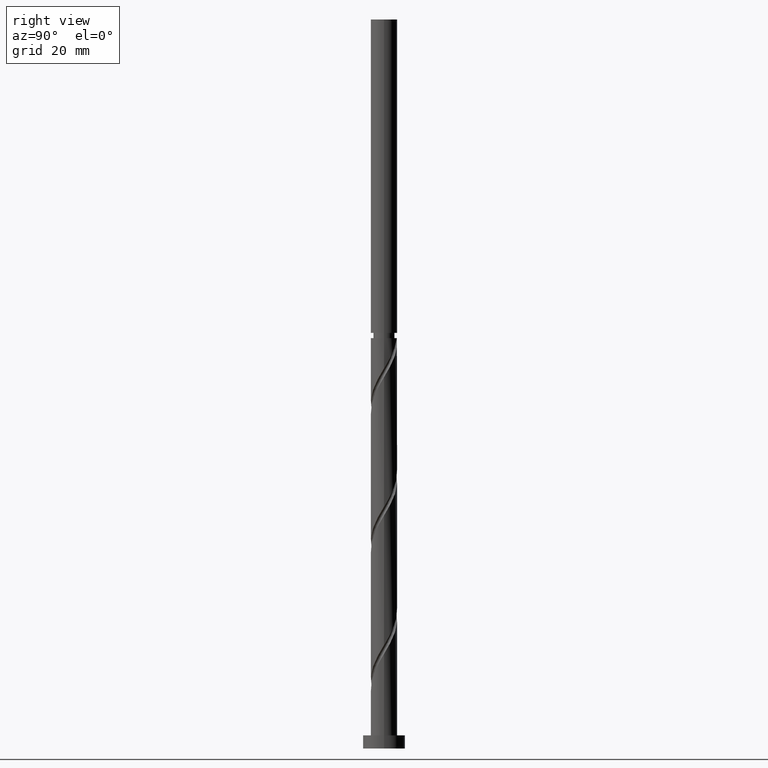
[diagram: clean part render]
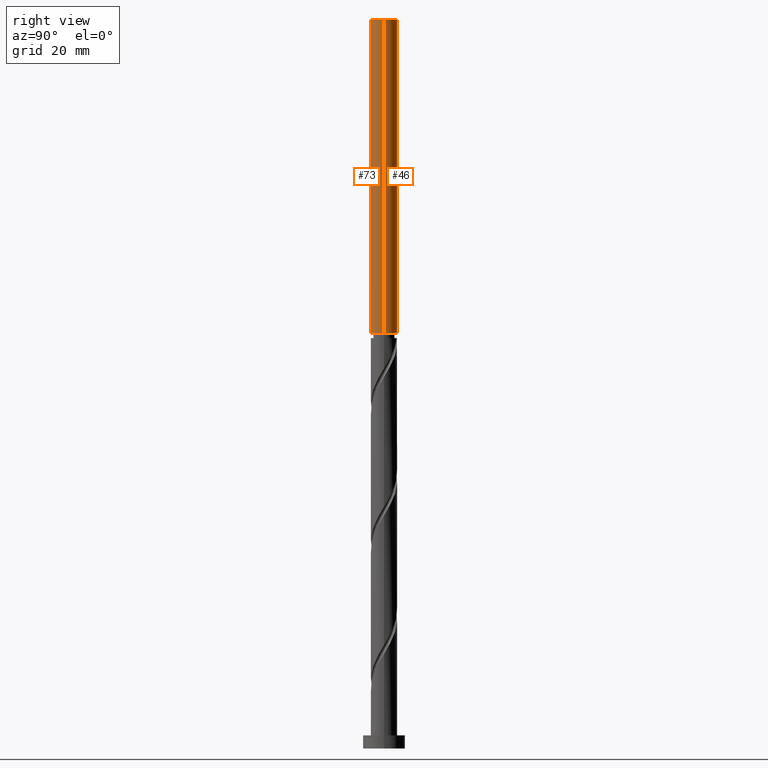
[diagram: same view with one multi-face feature highlighted, each face labeled with its STEP entity id]
A machine part, right view. The highlighted faces form ONE feature: a constant-radius fillet chain: 2 tangent blend faces with common blend radius 5 mm. The faces share edges in the B-rep.
Their STEP definitions:
[1] entity #73 (Cylinder):
#73 = ADVANCED_FACE ( 'NONE', ( #945 ), #587, .T. ) ;
#108 = CARTESIAN_POINT ( 'NONE',  ( 5.000000000000000000, 6.123233995736766282E-16, 276.6500000000000341 ) ) ;
#174 = CARTESIAN_POINT ( 'NONE',  ( 5.000000000000000000, 6.123233995736766282E-16, 276.6500000000000341 ) ) ;
#195 = EDGE_LOOP ( 'NONE', ( #1554, #1012, #898, #546 ) ) ;
#216 = LINE ( 'NONE', #424, #1066 ) ;
#298 = EDGE_CURVE ( 'NONE', #2371, #1163, #1651, .T. ) ;
#342 = LINE ( 'NONE', #174, #961 ) ;
#424 = CARTESIAN_POINT ( 'NONE',  ( -5.000000000000000000, 0.000000000000000000, 276.6500000000000341 ) ) ;
#464 = CARTESIAN_POINT ( 'NONE',  ( -4.999999999999993783, 0.000000000000000000, 157.7145295302219097 ) ) ;
#546 = ORIENTED_EDGE ( 'NONE', *, *, #298, .F. ) ;
#587 = CYLINDRICAL_SURFACE ( 'NONE', #1459, 5.000000000000000000 ) ;
#898 = ORIENTED_EDGE ( 'NONE', *, *, #2221, .T. ) ;
#930 = VERTEX_POINT ( 'NONE', #108 ) ;
#944 = EDGE_CURVE ( 'NONE', #930, #2371, #342, .T. ) ;
#945 = FACE_OUTER_BOUND ( 'NONE', #195, .T. ) ;
#960 = DIRECTION ( 'NONE',  ( -1.000000000000000000, 0.000000000000000000, 0.000000000000000000 ) ) ;
#961 = VECTOR ( 'NONE', #1295, 1000.000000000000000 ) ;
#965 = EDGE_CURVE ( 'NONE', #1805, #930, #1006, .T. ) ;
#1006 = CIRCLE ( 'NONE', #1864, 5.000000000000000000 ) ;
#1012 = ORIENTED_EDGE ( 'NONE', *, *, #965, .F. ) ;
#1058 = DIRECTION ( 'NONE',  ( 0.000000000000000000, 0.000000000000000000, 1.000000000000000000 ) ) ;
#1066 = VECTOR ( 'NONE', #1875, 1000.000000000000000 ) ;
#1163 = VERTEX_POINT ( 'NONE', #464 ) ;
#1210 = CARTESIAN_POINT ( 'NONE',  ( -5.000000000000000000, 0.000000000000000000, 276.6500000000000341 ) ) ;
#1230 = AXIS2_PLACEMENT_3D ( 'NONE', #1374, #1912, #1544 ) ;
#1244 = CARTESIAN_POINT ( 'NONE',  ( 0.000000000000000000, 0.000000000000000000, 276.6500000000000341 ) ) ;
#1295 = DIRECTION ( 'NONE',  ( -0.000000000000000000, -0.000000000000000000, -1.000000000000000000 ) ) ;
#1374 = CARTESIAN_POINT ( 'NONE',  ( 0.000000000000000000, 0.000000000000000000, 157.7145295302219097 ) ) ;
#1459 = AXIS2_PLACEMENT_3D ( 'NONE', #2028, #2407, #960 ) ;
#1544 = DIRECTION ( 'NONE',  ( -1.000000000000000000, 0.000000000000000000, 0.000000000000000000 ) ) ;
#1550 = CARTESIAN_POINT ( 'NONE',  ( 4.999999999999993783, 6.123233995736762338E-16, 157.7145295302219097 ) ) ;
#1554 = ORIENTED_EDGE ( 'NONE', *, *, #944, .F. ) ;
#1651 = CIRCLE ( 'NONE', #1230, 4.999999999999993783 ) ;
#1782 = DIRECTION ( 'NONE',  ( 1.000000000000000000, 0.000000000000000000, 0.000000000000000000 ) ) ;
#1805 = VERTEX_POINT ( 'NONE', #1210 ) ;
#1864 = AXIS2_PLACEMENT_3D ( 'NONE', #1244, #1058, #1782 ) ;
#1875 = DIRECTION ( 'NONE',  ( -0.000000000000000000, -0.000000000000000000, -1.000000000000000000 ) ) ;
#1912 = DIRECTION ( 'NONE',  ( -0.000000000000000000, -0.000000000000000000, -1.000000000000000000 ) ) ;
#2028 = CARTESIAN_POINT ( 'NONE',  ( 0.000000000000000000, 0.000000000000000000, 276.6500000000000341 ) ) ;
#2221 = EDGE_CURVE ( 'NONE', #1805, #1163, #216, .T. ) ;
#2371 = VERTEX_POINT ( 'NONE', #1550 ) ;
#2407 = DIRECTION ( 'NONE',  ( -0.000000000000000000, -0.000000000000000000, -1.000000000000000000 ) ) ;
[2] entity #46 (Cylinder):
#46 = ADVANCED_FACE ( 'NONE', ( #2422 ), #933, .T. ) ;
#108 = CARTESIAN_POINT ( 'NONE',  ( 5.000000000000000000, 6.123233995736766282E-16, 276.6500000000000341 ) ) ;
#155 = AXIS2_PLACEMENT_3D ( 'NONE', #1677, #1690, #2428 ) ;
#174 = CARTESIAN_POINT ( 'NONE',  ( 5.000000000000000000, 6.123233995736766282E-16, 276.6500000000000341 ) ) ;
#216 = LINE ( 'NONE', #424, #1066 ) ;
#342 = LINE ( 'NONE', #174, #961 ) ;
#424 = CARTESIAN_POINT ( 'NONE',  ( -5.000000000000000000, 0.000000000000000000, 276.6500000000000341 ) ) ;
#464 = CARTESIAN_POINT ( 'NONE',  ( -4.999999999999993783, 0.000000000000000000, 157.7145295302219097 ) ) ;
#528 = DIRECTION ( 'NONE',  ( 0.000000000000000000, 0.000000000000000000, 1.000000000000000000 ) ) ;
#588 = AXIS2_PLACEMENT_3D ( 'NONE', #2205, #528, #2387 ) ;
#742 = AXIS2_PLACEMENT_3D ( 'NONE', #1657, #1319, #2273 ) ;
#789 = CIRCLE ( 'NONE', #588, 5.000000000000000000 ) ;
#930 = VERTEX_POINT ( 'NONE', #108 ) ;
#933 = CYLINDRICAL_SURFACE ( 'NONE', #742, 5.000000000000000000 ) ;
#944 = EDGE_CURVE ( 'NONE', #930, #2371, #342, .T. ) ;
#961 = VECTOR ( 'NONE', #1295, 1000.000000000000000 ) ;
#986 = ORIENTED_EDGE ( 'NONE', *, *, #1608, .F. ) ;
#1066 = VECTOR ( 'NONE', #1875, 1000.000000000000000 ) ;
#1163 = VERTEX_POINT ( 'NONE', #464 ) ;
#1178 = ORIENTED_EDGE ( 'NONE', *, *, #944, .T. ) ;
#1210 = CARTESIAN_POINT ( 'NONE',  ( -5.000000000000000000, 0.000000000000000000, 276.6500000000000341 ) ) ;
#1295 = DIRECTION ( 'NONE',  ( -0.000000000000000000, -0.000000000000000000, -1.000000000000000000 ) ) ;
#1319 = DIRECTION ( 'NONE',  ( -0.000000000000000000, -0.000000000000000000, -1.000000000000000000 ) ) ;
#1449 = ORIENTED_EDGE ( 'NONE', *, *, #2221, .F. ) ;
#1460 = EDGE_CURVE ( 'NONE', #930, #1805, #789, .T. ) ;
#1550 = CARTESIAN_POINT ( 'NONE',  ( 4.999999999999993783, 6.123233995736762338E-16, 157.7145295302219097 ) ) ;
#1608 = EDGE_CURVE ( 'NONE', #1163, #2371, #2359, .T. ) ;
#1657 = CARTESIAN_POINT ( 'NONE',  ( 0.000000000000000000, 0.000000000000000000, 276.6500000000000341 ) ) ;
#1677 = CARTESIAN_POINT ( 'NONE',  ( 0.000000000000000000, 0.000000000000000000, 157.7145295302219097 ) ) ;
#1690 = DIRECTION ( 'NONE',  ( -0.000000000000000000, -0.000000000000000000, -1.000000000000000000 ) ) ;
#1805 = VERTEX_POINT ( 'NONE', #1210 ) ;
#1875 = DIRECTION ( 'NONE',  ( -0.000000000000000000, -0.000000000000000000, -1.000000000000000000 ) ) ;
#2023 = EDGE_LOOP ( 'NONE', ( #2404, #1178, #986, #1449 ) ) ;
#2205 = CARTESIAN_POINT ( 'NONE',  ( 0.000000000000000000, 0.000000000000000000, 276.6500000000000341 ) ) ;
#2221 = EDGE_CURVE ( 'NONE', #1805, #1163, #216, .T. ) ;
#2273 = DIRECTION ( 'NONE',  ( -1.000000000000000000, 0.000000000000000000, 0.000000000000000000 ) ) ;
#2359 = CIRCLE ( 'NONE', #155, 4.999999999999993783 ) ;
#2371 = VERTEX_POINT ( 'NONE', #1550 ) ;
#2387 = DIRECTION ( 'NONE',  ( 1.000000000000000000, 0.000000000000000000, 0.000000000000000000 ) ) ;
#2404 = ORIENTED_EDGE ( 'NONE', *, *, #1460, .F. ) ;
#2422 = FACE_OUTER_BOUND ( 'NONE', #2023, .T. ) ;
#2428 = DIRECTION ( 'NONE',  ( -1.000000000000000000, 0.000000000000000000, 0.000000000000000000 ) ) ;